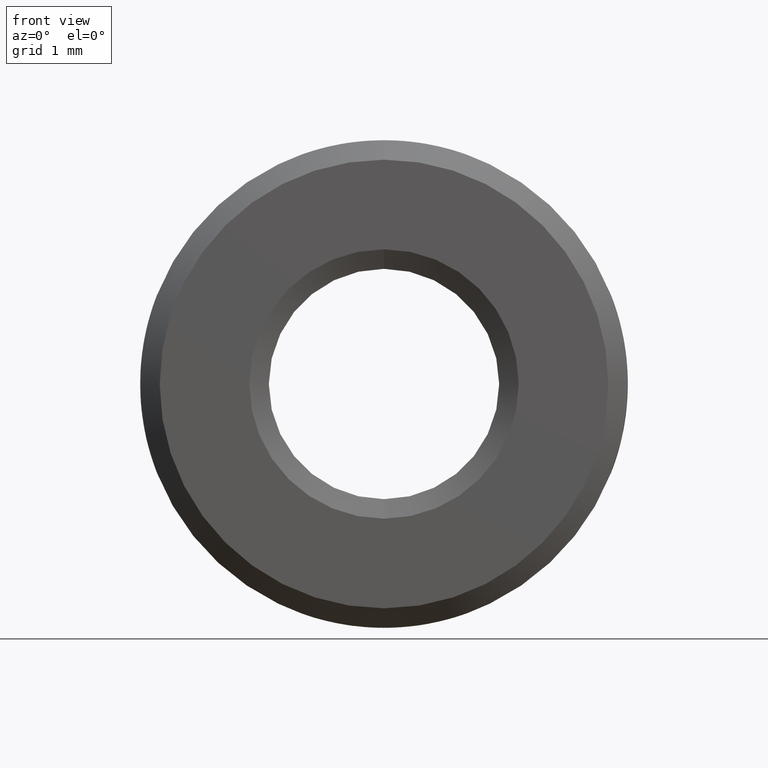
[diagram: clean part render]
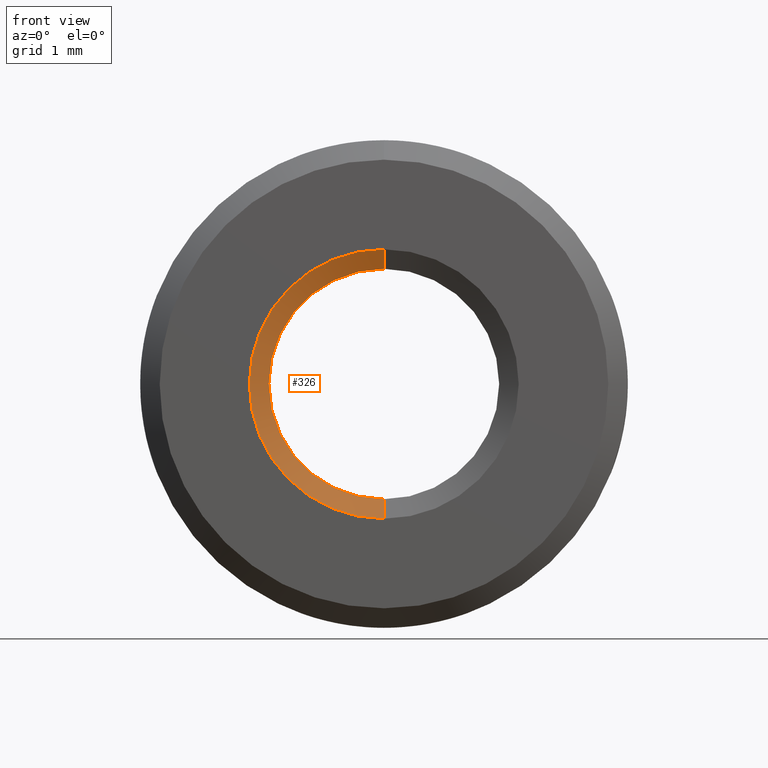
[diagram: same view with one face highlighted and labeled with its STEP entity id]
A machine part, front view. The second image highlights one B-rep face of the part: STEP entity #326.
In plain terms, the highlighted conical surface has half-angle 60 deg.
Its self-contained STEP definition (entity closure, byte-faithful):
#309 = ORIENTED_EDGE ( 'NONE', *, *, #310, .F. ) ;
#310 = EDGE_CURVE ( 'NONE', #332, #319, #1743, .T. ) ;
#315 = EDGE_LOOP ( 'NONE', ( #330, #321, #317, #309 ) ) ;
#316 = VERTEX_POINT ( 'NONE', #1659 ) ;
#317 = ORIENTED_EDGE ( 'NONE', *, *, #318, .F. ) ;
#318 = EDGE_CURVE ( 'NONE', #319, #316, #1637, .T. ) ;
#319 = VERTEX_POINT ( 'NONE', #1632 ) ;
#321 = ORIENTED_EDGE ( 'NONE', *, *, #322, .T. ) ;
#322 = EDGE_CURVE ( 'NONE', #333, #316, #1631, .T. ) ;
#326 = ADVANCED_FACE ( 'NONE', ( #1621 ), #1815, .F. ) ;
#330 = ORIENTED_EDGE ( 'NONE', *, *, #331, .T. ) ;
#331 = EDGE_CURVE ( 'NONE', #332, #333, #1647, .T. ) ;
#332 = VERTEX_POINT ( 'NONE', #1643 ) ;
#333 = VERTEX_POINT ( 'NONE', #1642 ) ;
#1621 = FACE_OUTER_BOUND ( 'NONE', #315, .T. ) ;
#1628 = DIRECTION ( 'NONE',  ( 1.060575238724905200E-016, -0.5000000000000024400, 0.8660254037844372600 ) ) ;
#1629 = VECTOR ( 'NONE', #1628, 1000.000000000000000 ) ;
#1630 = CARTESIAN_POINT ( 'NONE',  ( 1.436465394617966800E-015, -1.440853031625833700, 1.499999999999999100 ) ) ;
#1631 = LINE ( 'NONE', #1630, #1629 ) ;
#1632 = CARTESIAN_POINT ( 'NONE',  ( 1.252768374745863700E-015, -1.587499999999999500, -1.753999999999999100 ) ) ;
#1633 = DIRECTION ( 'NONE',  ( 0.0000000000000000000, 0.0000000000000000000, 1.000000000000000000 ) ) ;
#1634 = DIRECTION ( 'NONE',  ( 0.0000000000000000000, 1.000000000000000000, 0.0000000000000000000 ) ) ;
#1635 = CARTESIAN_POINT ( 'NONE',  ( 1.252768374745863700E-015, -1.587499999999999500, 0.0000000000000000000 ) ) ;
#1636 = AXIS2_PLACEMENT_3D ( 'NONE', #1635, #1634, #1633 ) ;
#1637 = CIRCLE ( 'NONE', #1636, 1.753999999999999100 ) ;
#1642 = CARTESIAN_POINT ( 'NONE',  ( 1.252768374745863700E-015, -1.440853031625833700, 1.499999999999999100 ) ) ;
#1643 = CARTESIAN_POINT ( 'NONE',  ( 1.436465394617966800E-015, -1.440853031625833700, -1.499999999999999100 ) ) ;
#1644 = DIRECTION ( 'NONE',  ( 0.0000000000000000000, 0.0000000000000000000, 1.000000000000000000 ) ) ;
#1645 = DIRECTION ( 'NONE',  ( 0.0000000000000000000, 1.000000000000000000, 0.0000000000000000000 ) ) ;
#1646 = AXIS2_PLACEMENT_3D ( 'NONE', #1652, #1645, #1644 ) ;
#1647 = CIRCLE ( 'NONE', #1646, 1.499999999999999100 ) ;
#1652 = CARTESIAN_POINT ( 'NONE',  ( 1.252768374745863700E-015, -1.440853031625833700, 0.0000000000000000000 ) ) ;
#1659 = CARTESIAN_POINT ( 'NONE',  ( 1.467571423316309400E-015, -1.587499999999999500, 1.753999999999999100 ) ) ;
#1740 = DIRECTION ( 'NONE',  ( 0.0000000000000000000, -0.5000000000000024400, -0.8660254037844372600 ) ) ;
#1741 = VECTOR ( 'NONE', #1740, 1000.000000000000000 ) ;
#1742 = CARTESIAN_POINT ( 'NONE',  ( 1.252768374745863700E-015, -1.440853031625833700, -1.499999999999999100 ) ) ;
#1743 = LINE ( 'NONE', #1742, #1741 ) ;
#1812 = DIRECTION ( 'NONE',  ( 0.0000000000000000000, 0.0000000000000000000, -1.000000000000000000 ) ) ;
#1813 = DIRECTION ( 'NONE',  ( 0.0000000000000000000, -1.000000000000000000, 0.0000000000000000000 ) ) ;
#1814 = AXIS2_PLACEMENT_3D ( 'NONE', #1816, #1813, #1812 ) ;
#1815 = CONICAL_SURFACE ( 'NONE', #1814, 1.499999999999999100, 1.047197551196595000 ) ;
#1816 = CARTESIAN_POINT ( 'NONE',  ( 1.252768374745863700E-015, -1.440853031625833700, 0.0000000000000000000 ) ) ;